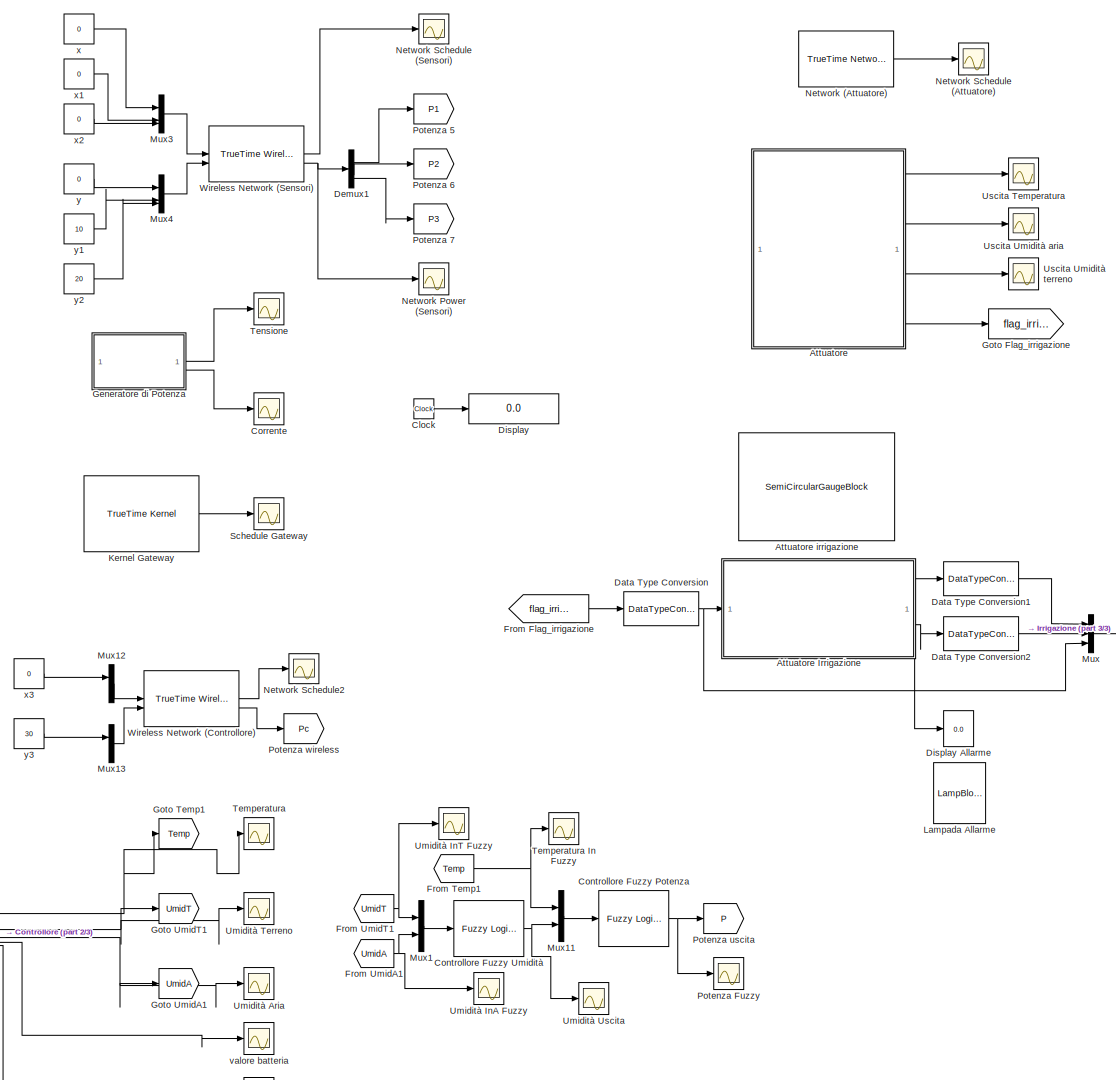
[diagram: root canvas - part 1/3, center side, full height]
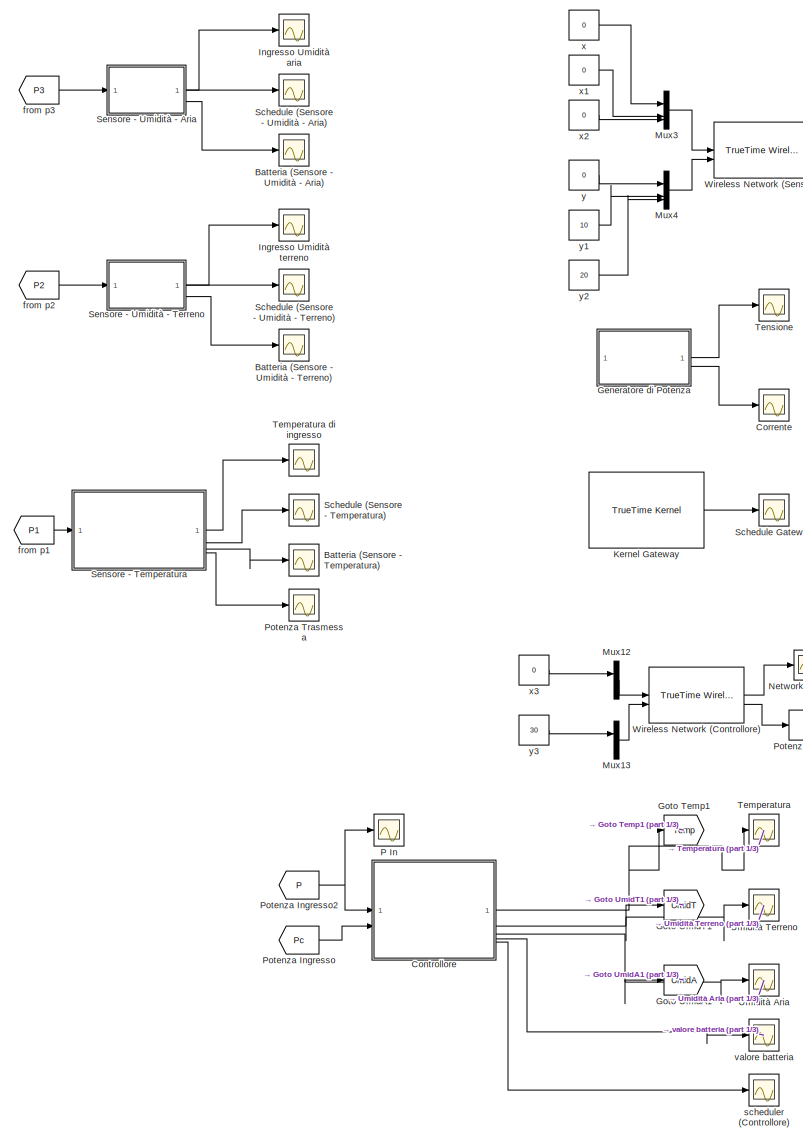
[diagram: root canvas - part 2/3, left side, full height]
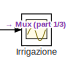
[diagram: root canvas - part 3/3, middle right region]
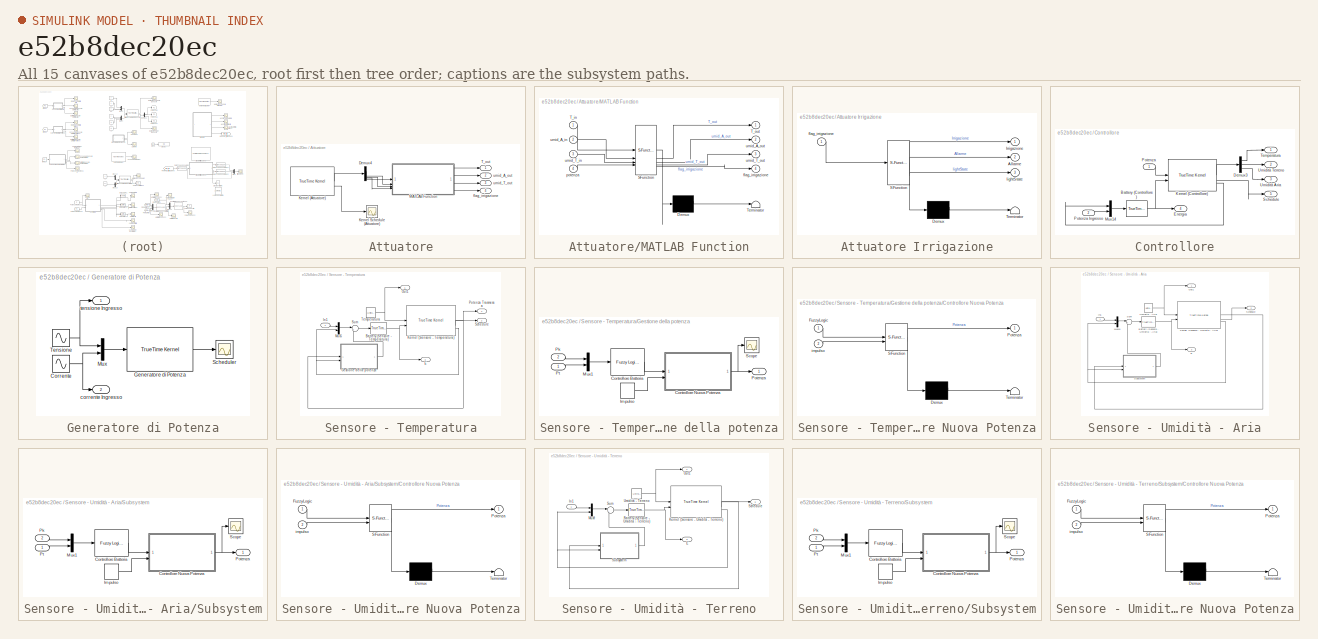
[diagram: thumbnail index - all 15 canvases of the model, root first then tree order]
MODEL slx_e52b8dec20ec
KIND model
CONFIG AbsTol = auto
CONFIG EnableMultiTasking = off
CONFIG FixedStep = auto
CONFIG MaxStep = auto
CONFIG MinStep = auto
CONFIG RelTol = 1e-3
CONFIG SampleTimeConstraint = Unconstrained
CONFIG SolverName = VariableStepAuto
CONFIG StartTime = 0.0
CONFIG StopTime = 600
BLOCK [SubSystem] Attuatore
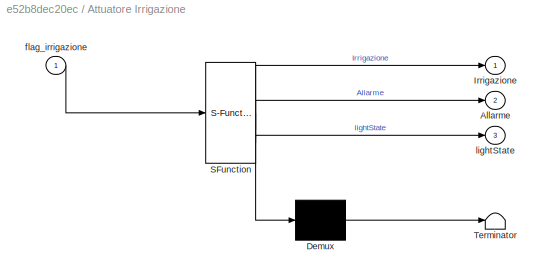
BLOCK [SubSystem] Attuatore Irrigazione
  ErrorFcn = Stateflow.Translate.translate
  PermitHierarchicalResolution = ExplicitOnly
  SFBlockType = Chart
  TreatAsAtomicUnit = on
BLOCK [Demux] Attuatore Irrigazione/ Demux 
  Outputs = 1
BLOCK [S-Function] Attuatore Irrigazione/ SFunction 
  EnableBusSupport = on
  FunctionName = sf_sfun
  PortCounts = [1 4]
  SFcnIsStateOwnerBlock = off
  SFunctionDeploymentMode = off
  Tag = Stateflow S-Function 3
BLOCK [Terminator] Attuatore Irrigazione/ Terminator 
BLOCK [Outport] Attuatore Irrigazione/Allarme
  Port = 2
BLOCK [Outport] Attuatore Irrigazione/Irrigazione
BLOCK [Inport] Attuatore Irrigazione/flag_irrigazione
BLOCK [Outport] Attuatore Irrigazione/lightState
  Port = 3
BLOCK [SemiCircularGaugeBlock] Attuatore irrigazione
  ScaleDirection = Counterclockwise
  ScaleMax = 10
BLOCK [Demux] Attuatore/Demux4
BLOCK [Reference] Attuatore/Kernel (Attuatore)  REF=truetime/TrueTime Kernel  (lib defined in slx_0362a698a4ec)
  SourceBlock = truetime/TrueTime Kernel
BLOCK [Scope] Attuatore/Kernel Schedule (Attuatore)
  Floating = off
  NumInputPorts = 1
  ScopeSpecificationString = Simulink.scopes.TimeScopeBlockCfg('CurrentConfiguration', extmgr.ConfigurationSet(extmgr.Configuration('Core','General UI',true),extmgr.Configuration('Core','Source UI',true),extmgr.Configuration('Sources','WiredSimulink',true,'DataLoggingVariableName','ScopeData1'),extmgr.Configuration('Visuals','Time Domain',true),extmgr.Configuration('Tools','Plot Navigation',true),extmgr.Configuration('Tools',...<+40ch>
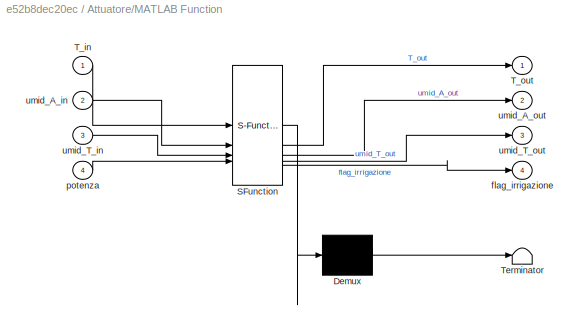
BLOCK [SubSystem] Attuatore/MATLAB Function
  ErrorFcn = Stateflow.Translate.translate
  PermitHierarchicalResolution = ExplicitOnly
  SFBlockType = MATLAB Function
  TreatAsAtomicUnit = on
BLOCK [Demux] Attuatore/MATLAB Function/ Demux 
  Outputs = 1
BLOCK [S-Function] Attuatore/MATLAB Function/ SFunction 
  EnableBusSupport = on
  FunctionName = sf_sfun
  PortCounts = [4 5]
  SFcnIsStateOwnerBlock = off
  SFunctionDeploymentMode = off
  Tag = Stateflow S-Function 1
BLOCK [Terminator] Attuatore/MATLAB Function/ Terminator 
BLOCK [Inport] Attuatore/MATLAB Function/T_in
BLOCK [Outport] Attuatore/MATLAB Function/T_out
BLOCK [Outport] Attuatore/MATLAB Function/flag_irrigazione
  Port = 4
BLOCK [Inport] Attuatore/MATLAB Function/potenza
  Port = 4
BLOCK [Inport] Attuatore/MATLAB Function/umid_A_in
  Port = 2
BLOCK [Outport] Attuatore/MATLAB Function/umid_A_out
  Port = 2
BLOCK [Inport] Attuatore/MATLAB Function/umid_T_in
  Port = 3
BLOCK [Outport] Attuatore/MATLAB Function/umid_T_out
  Port = 3
BLOCK [Outport] Attuatore/T_out
BLOCK [Outport] Attuatore/flag_irrigazione
  Port = 4
BLOCK [Outport] Attuatore/umid_A_out
  Port = 2
BLOCK [Outport] Attuatore/umid_T_out
  Port = 3
BLOCK [Scope] Batteria (Sensore - Temperatura)
  Floating = off
  NumInputPorts = 1
  ScopeSpecificationString = Simulink.scopes.TimeScopeBlockCfg('CurrentConfiguration', extmgr.ConfigurationSet(extmgr.Configuration('Core','General UI',true),extmgr.Configuration('Core','Source UI',true),extmgr.Configuration('Sources','WiredSimulink',true,'DataLoggingVariableName','ScopeData1'),extmgr.Configuration('Visuals','Time Domain',true,'SerializedDisplays',{struct('MinYLimReal','5.91377','MaxYLimReal','10.14938','YLab...<+1461ch>
BLOCK [Scope] Batteria (Sensore - Umidità - Aria)
  Floating = off
  NumInputPorts = 1
  ScopeSpecificationString = Simulink.scopes.TimeScopeBlockCfg('CurrentConfiguration', extmgr.ConfigurationSet(extmgr.Configuration('Core','General UI',true),extmgr.Configuration('Core','Source UI',true),extmgr.Configuration('Sources','WiredSimulink',true,'DataLoggingVariableName','ScopeData2'),extmgr.Configuration('Visuals','Time Domain',true,'SerializedDisplays',{struct('MinYLimReal','9.98931','MaxYLimReal','10.00119','YLab...<+1416ch>
BLOCK [Scope] Batteria (Sensore - Umidità - Terreno)
  Floating = off
  NumInputPorts = 1
  ScopeSpecificationString = Simulink.scopes.TimeScopeBlockCfg('CurrentConfiguration', extmgr.ConfigurationSet(extmgr.Configuration('Core','General UI',true),extmgr.Configuration('Core','Source UI',true),extmgr.Configuration('Sources','WiredSimulink',true,'DataLoggingVariableName','ScopeData3'),extmgr.Configuration('Visuals','Time Domain',true,'SerializedDisplays',{struct('MinYLimReal','9999.69694','MaxYLimReal','9999.92292',...<+1483ch>
BLOCK [Clock] Clock
  DisplayTime = on
BLOCK [SubSystem] Controllore
BLOCK [Reference] Controllore Fuzzy Potenza  REF=fuzblock/Fuzzy Logic   (lib defined in mdl_858b3b3e7478)
Controller
  SourceBlock = fuzblock/Fuzzy Logic \nController
  SourceType = Fuzzy Inference System
BLOCK [Reference] Controllore Fuzzy Umidità  REF=fuzblock/Fuzzy Logic   (lib defined in mdl_858b3b3e7478)
Controller
  SourceBlock = fuzblock/Fuzzy Logic \nController
  SourceType = Fuzzy Inference System
BLOCK [Reference] Controllore/Battery (Controllore)  REF=truetime/TrueTime Battery  (lib defined in slx_0362a698a4ec)
  SourceBlock = truetime/TrueTime Battery
BLOCK [Demux] Controllore/Demux3
  Outputs = 3
BLOCK [Outport] Controllore/Energia
  Port = 4
BLOCK [Reference] Controllore/Kernel (Controllore)  REF=truetime/TrueTime Kernel  (lib defined in slx_0362a698a4ec)
  SourceBlock = truetime/TrueTime Kernel
BLOCK [Mux] Controllore/Mux14
  DisplayOption = bar
  Inputs = 2
BLOCK [Inport] Controllore/Potenza
BLOCK [Inport] Controllore/Potenza Ingresso
  Port = 2
BLOCK [Outport] Controllore/Schedule
  Port = 5
BLOCK [Outport] Controllore/Temperatura
BLOCK [Outport] Controllore/Umidità Aria 
  Port = 3
BLOCK [Outport] Controllore/Umidità Terreno
  Port = 2
BLOCK [Scope] Corrente
  Floating = off
  NumInputPorts = 1
  ScopeSpecificationString = Simulink.scopes.TimeScopeBlockCfg('CurrentConfiguration', extmgr.ConfigurationSet(extmgr.Configuration('Core','General UI',true),extmgr.Configuration('Core','Source UI',true),extmgr.Configuration('Sources','WiredSimulink',true,'DataLoggingVariableName','ScopeData3'),extmgr.Configuration('Visuals','Time Domain',true,'SerializedDisplays',{struct('MinYLimReal','-0.0625','MaxYLimReal','0.0625','YLabel...<+1405ch>
BLOCK [DataTypeConversion] Data Type Conversion
  OutDataTypeStr = uint8
  RndMeth = Floor
  SaturateOnIntegerOverflow = off
BLOCK [DataTypeConversion] Data Type Conversion1
  OutDataTypeStr = uint8
  RndMeth = Floor
  SaturateOnIntegerOverflow = off
BLOCK [DataTypeConversion] Data Type Conversion2
  OutDataTypeStr = uint8
  RndMeth = Floor
  SaturateOnIntegerOverflow = off
BLOCK [Demux] Demux1
BLOCK [Display] Display
  Decimation = 1
BLOCK [Display] Display Allarme
  Decimation = 1
BLOCK [From] From Flag_irrigazione
  GotoTag = flag_irrigazione
BLOCK [From] From Temp1
  GotoTag = Temp
BLOCK [From] From UmidA1
  GotoTag = UmidA
BLOCK [From] From UmidT1
  GotoTag = UmidT
BLOCK [SubSystem] Generatore di Potenza
BLOCK [Sin] Generatore di Potenza/Corrente
  Amplitude = 0.05
  SampleTime = 0
BLOCK [Reference] Generatore di Potenza/Generatore di Potenza  REF=truetime/TrueTime Kernel  (lib defined in slx_0362a698a4ec)
  SourceBlock = truetime/TrueTime Kernel
BLOCK [Mux] Generatore di Potenza/Mux
  DisplayOption = bar
  Inputs = 2
BLOCK [Scope] Generatore di Potenza/Scheduler
  Floating = off
  NumInputPorts = 1
  ScopeSpecificationString = Simulink.scopes.TimeScopeBlockCfg('CurrentConfiguration', extmgr.ConfigurationSet(extmgr.Configuration('Core','General UI',true),extmgr.Configuration('Core','Source UI',true),extmgr.Configuration('Sources','WiredSimulink',true,'DataLoggingVariableName','ScopeData4'),extmgr.Configuration('Visuals','Time Domain',true),extmgr.Configuration('Tools','Plot Navigation',true),extmgr.Configuration('Tools',...<+40ch>
BLOCK [Sin] Generatore di Potenza/Tensione
  Amplitude = 18
  Phase = pi / 2
  SampleTime = 0
BLOCK [Outport] Generatore di Potenza/corrente Ingresso
  Port = 2
BLOCK [Outport] Generatore di Potenza/tensione Ingresso
  NameLocation = top
BLOCK [Goto] Goto Flag_irrigazione
  GotoTag = flag_irrigazione
BLOCK [Goto] Goto Temp1
  GotoTag = Temp
BLOCK [Goto] Goto UmidA1
  GotoTag = UmidA
BLOCK [Goto] Goto UmidT1
  GotoTag = UmidT
BLOCK [Scope] Ingresso Umidità aria
  Floating = off
  NumInputPorts = 1
  ScopeSpecificationString = Simulink.scopes.TimeScopeBlockCfg('CurrentConfiguration', extmgr.ConfigurationSet(extmgr.Configuration('Core','General UI',true),extmgr.Configuration('Core','Source UI',true),extmgr.Configuration('Sources','WiredSimulink',true,'DataLoggingVariableName','ScopeData16'),extmgr.Configuration('Visuals','Time Domain',true,'SerializedDisplays',{struct('MinYLimReal','23.08685','MaxYLimReal','96.83729','YL...<+1392ch>
BLOCK [Scope] Ingresso Umidità terreno
  Floating = off
  NumInputPorts = 1
  ScopeSpecificationString = Simulink.scopes.TimeScopeBlockCfg('CurrentConfiguration', extmgr.ConfigurationSet(extmgr.Configuration('Core','General UI',true),extmgr.Configuration('Core','Source UI',true),extmgr.Configuration('Sources','WiredSimulink',true,'DataLoggingVariableName','ScopeData17'),extmgr.Configuration('Visuals','Time Domain',true,'SerializedDisplays',{struct('MinYLimReal','23.08685','MaxYLimReal','96.83729','YL...<+1424ch>
BLOCK [Scope] Irrigazione
  Floating = off
  NumInputPorts = 1
  ScopeSpecificationString = Simulink.scopes.TimeScopeBlockCfg('CurrentConfiguration', extmgr.ConfigurationSet(extmgr.Configuration('Core','General UI',true),extmgr.Configuration('Core','Source UI',true),extmgr.Configuration('Sources','WiredSimulink',true,'DataLoggingVariableName','ScopeData1'),extmgr.Configuration('Visuals','Time Domain',true,'SerializedDisplays',{struct('MinYLimReal','-0.625','MaxYLimReal','5.625','YLabelRe...<+1444ch>
BLOCK [Reference] Kernel Gateway  REF=truetime/TrueTime Kernel  (lib defined in slx_0362a698a4ec)
  SourceBlock = truetime/TrueTime Kernel
BLOCK [LampBlock] Lampada Allarme
BLOCK [Mux] Mux
  DisplayOption = bar
  Inputs = 3
BLOCK [Mux] Mux1
  DisplayOption = bar
  Inputs = 2
BLOCK [Mux] Mux11
  DisplayOption = bar
  Inputs = 2
BLOCK [Mux] Mux12
  DisplayOption = bar
  Inputs = 2
BLOCK [Mux] Mux13
  DisplayOption = bar
  Inputs = 2
BLOCK [Mux] Mux3
  DisplayOption = bar
BLOCK [Mux] Mux4
  DisplayOption = bar
BLOCK [Reference] Network (Attuatore)  REF=truetime/TrueTime Network  (lib defined in slx_0362a698a4ec)
  SourceBlock = truetime/TrueTime Network
  SourceType = Real-Time Network
BLOCK [Scope] Network Power (Sensori)
  Floating = off
  NumInputPorts = 1
  ScopeSpecificationString = Simulink.scopes.TimeScopeBlockCfg('CurrentConfiguration', extmgr.ConfigurationSet(extmgr.Configuration('Core','General UI',true,'FigureColor',[0.156862745098039 0.156862745098039 0.156862745098039]),extmgr.Configuration('Core','Source UI',true),extmgr.Configuration('Sources','WiredSimulink',true,'DataLoggingVariableName','ScopeData8','DataLoggingSaveFormat','StructureWithTime','DataLoggingDecimati...<+2903ch>
BLOCK [Scope] Network Schedule (Attuatore)
  Floating = off
  NumInputPorts = 1
  ScopeSpecificationString = Simulink.scopes.TimeScopeBlockCfg('CurrentConfiguration', extmgr.ConfigurationSet(extmgr.Configuration('Core','General UI',true),extmgr.Configuration('Core','Source UI',true),extmgr.Configuration('Sources','WiredSimulink',true,'DataLoggingVariableName','ScopeData25'),extmgr.Configuration('Visuals','Time Domain',true,'SerializedDisplays',{struct('MinYLimReal','0.5625','MaxYLimReal','4.9375','YLabel...<+1443ch>
BLOCK [Scope] Network Schedule (Sensori)
  Floating = off
  NumInputPorts = 1
  ScopeSpecificationString = Simulink.scopes.TimeScopeBlockCfg('CurrentConfiguration', extmgr.ConfigurationSet(extmgr.Configuration('Core','General UI',true,'FigureColor',[0.156862745098039 0.156862745098039 0.156862745098039]),extmgr.Configuration('Core','Source UI',true),extmgr.Configuration('Sources','WiredSimulink',true,'DataLogging',true,'DataLoggingVariableName','ScopeData5','DataLoggingSaveFormat','StructureWithTime','...<+2773ch>
BLOCK [Scope] Network Schedule2
  Floating = off
  NumInputPorts = 1
  ScopeSpecificationString = Simulink.scopes.TimeScopeBlockCfg('CurrentConfiguration', extmgr.ConfigurationSet(extmgr.Configuration('Core','General UI',true,'FigureColor',[0.156862745098039 0.156862745098039 0.156862745098039]),extmgr.Configuration('Core','Source UI',true),extmgr.Configuration('Sources','WiredSimulink',true,'DataLogging',true,'DataLoggingVariableName','ScopeData4','DataLoggingSaveFormat','StructureWithTime','...<+2773ch>
BLOCK [Scope] P In
  Floating = off
  NumInputPorts = 1
  ScopeSpecificationString = Simulink.scopes.TimeScopeBlockCfg('CurrentConfiguration', extmgr.ConfigurationSet(extmgr.Configuration('Core','General UI',true),extmgr.Configuration('Core','Source UI',true),extmgr.Configuration('Sources','WiredSimulink',true,'DataLoggingVariableName','ScopeData6'),extmgr.Configuration('Visuals','Time Domain',true,'SerializedDisplays',{struct('MinYLimReal','1.40743','MaxYLimReal','9.5363','YLabel...<+1402ch>
BLOCK [Goto] Potenza 5
  GotoTag = P1
BLOCK [Goto] Potenza 6
  GotoTag = P2
BLOCK [Goto] Potenza 7
  GotoTag = P3
BLOCK [Scope] Potenza Fuzzy
  Floating = off
  NumInputPorts = 1
  ScopeSpecificationString = Simulink.scopes.TimeScopeBlockCfg('CurrentConfiguration', extmgr.ConfigurationSet(extmgr.Configuration('Core','General UI',true),extmgr.Configuration('Core','Source UI',true),extmgr.Configuration('Sources','WiredSimulink',true,'DataLoggingVariableName','ScopeData7'),extmgr.Configuration('Visuals','Time Domain',true,'SerializedDisplays',{struct('MinYLimReal','1.53238','MaxYLimReal','9.46543','YLabe...<+1410ch>
BLOCK [From] Potenza Ingresso
  GotoTag = Pc
BLOCK [From] Potenza Ingresso2
  GotoTag = P
BLOCK [Scope] Potenza Trasmessa
  Floating = off
  NumInputPorts = 1
  ScopeSpecificationString = Simulink.scopes.TimeScopeBlockCfg('CurrentConfiguration', extmgr.ConfigurationSet(extmgr.Configuration('Core','General UI',true),extmgr.Configuration('Core','Source UI',true),extmgr.Configuration('Sources','WiredSimulink',true,'DataLoggingVariableName','ScopeData5'),extmgr.Configuration('Visuals','Time Domain',true,'SerializedDisplays',{struct('MinYLimReal','-0.43885','MaxYLimReal','0.54407','YLab...<+1411ch>
BLOCK [Goto] Potenza uscita
  GotoTag = P
BLOCK [Goto] Potenza wireless
  GotoTag = Pc
BLOCK [Scope] Schedule (Sensore - Temperatura)
  Floating = off
  NumInputPorts = 1
  ScopeSpecificationString = Simulink.scopes.TimeScopeBlockCfg('CurrentConfiguration', extmgr.ConfigurationSet(extmgr.Configuration('Core','General UI',true),extmgr.Configuration('Core','Source UI',true),extmgr.Configuration('Sources','WiredSimulink',true,'DataLoggingVariableName','ScopeData9'),extmgr.Configuration('Visuals','Time Domain',true,'SerializedDisplays',{struct('MinYLimReal','0.75','MaxYLimReal','3.25','YLabelReal'...<+1414ch>
BLOCK [Scope] Schedule (Sensore - Umidità -  Aria)
  Floating = off
  NumInputPorts = 1
  ScopeSpecificationString = Simulink.scopes.TimeScopeBlockCfg('CurrentConfiguration', extmgr.ConfigurationSet(extmgr.Configuration('Core','General UI',true),extmgr.Configuration('Core','Source UI',true),extmgr.Configuration('Sources','WiredSimulink',true,'DataLoggingVariableName','ScopeData10'),extmgr.Configuration('Visuals','Time Domain',true),extmgr.Configuration('Tools','Plot Navigation',true),extmgr.Configuration('Tools'...<+41ch>
BLOCK [Scope] Schedule (Sensore - Umidità - Terreno)
  Floating = off
  NumInputPorts = 1
  ScopeSpecificationString = Simulink.scopes.TimeScopeBlockCfg('CurrentConfiguration', extmgr.ConfigurationSet(extmgr.Configuration('Core','General UI',true),extmgr.Configuration('Core','Source UI',true),extmgr.Configuration('Sources','WiredSimulink',true,'DataLoggingVariableName','ScopeData11'),extmgr.Configuration('Visuals','Time Domain',true),extmgr.Configuration('Tools','Plot Navigation',true),extmgr.Configuration('Tools'...<+41ch>
BLOCK [Scope] Schedule Gateway
  Floating = off
  NumInputPorts = 1
  ScopeSpecificationString = Simulink.scopes.TimeScopeBlockCfg('CurrentConfiguration', extmgr.ConfigurationSet(extmgr.Configuration('Core','General UI',true),extmgr.Configuration('Core','Source UI',true),extmgr.Configuration('Sources','WiredSimulink',true,'DataLoggingVariableName','ScopeData12'),extmgr.Configuration('Visuals','Time Domain',true),extmgr.Configuration('Tools','Plot Navigation',true),extmgr.Configuration('Tools'...<+41ch>
BLOCK [SubSystem] Sensore - Temperatura
BLOCK [Reference] Sensore - Temperatura/Battery (Sensore - Temperatura)   REF=truetime/TrueTime Battery  (lib defined in slx_0362a698a4ec)
  SourceBlock = truetime/TrueTime Battery
BLOCK [Outport] Sensore - Temperatura/E
  Port = 3
BLOCK [SubSystem] Sensore - Temperatura/Gestione della potenza
BLOCK [Reference] Sensore - Temperatura/Gestione della potenza/Controllore Batteria  REF=fuzblock/Fuzzy Logic   (lib defined in mdl_858b3b3e7478)
Controller
  SourceBlock = fuzblock/Fuzzy Logic \nController
  SourceType = Fuzzy Inference System
BLOCK [SubSystem] Sensore - Temperatura/Gestione della potenza/Controllore Nuova Potenza
  ErrorFcn = Stateflow.Translate.translate
  PermitHierarchicalResolution = ExplicitOnly
  SFBlockType = MATLAB Function
  TreatAsAtomicUnit = on
BLOCK [Demux] Sensore - Temperatura/Gestione della potenza/Controllore Nuova Potenza/ Demux 
  Outputs = 1
BLOCK [S-Function] Sensore - Temperatura/Gestione della potenza/Controllore Nuova Potenza/ SFunction 
  EnableBusSupport = on
  FunctionName = sf_sfun
  PortCounts = [2 2]
  SFcnIsStateOwnerBlock = off
  SFunctionDeploymentMode = off
  Tag = Stateflow S-Function 4
BLOCK [Terminator] Sensore - Temperatura/Gestione della potenza/Controllore Nuova Potenza/ Terminator 
BLOCK [Inport] Sensore - Temperatura/Gestione della potenza/Controllore Nuova Potenza/FuzzyLogic
BLOCK [Outport] Sensore - Temperatura/Gestione della potenza/Controllore Nuova Potenza/Potenza
BLOCK [Inport] Sensore - Temperatura/Gestione della potenza/Controllore Nuova Potenza/impulso
  Port = 2
BLOCK [DiscretePulseGenerator] Sensore - Temperatura/Gestione della potenza/Impulso
  Amplitude = 0.1
  Period = 1
  PulseType = Time based
  PulseWidth = 5
BLOCK [Mux] Sensore - Temperatura/Gestione della potenza/Mux1
  DisplayOption = bar
  Inputs = 2
BLOCK [Inport] Sensore - Temperatura/Gestione della potenza/Pk
  Port = 2
BLOCK [Outport] Sensore - Temperatura/Gestione della potenza/Potenza
BLOCK [Inport] Sensore - Temperatura/Gestione della potenza/Pt
BLOCK [Scope] Sensore - Temperatura/Gestione della potenza/Scope
  Floating = off
  NumInputPorts = 1
  ScopeSpecificationString = Simulink.scopes.TimeScopeBlockCfg('CurrentConfiguration', extmgr.ConfigurationSet(extmgr.Configuration('Core','General UI',true),extmgr.Configuration('Core','Source UI',true),extmgr.Configuration('Sources','WiredSimulink',true,'DataLoggingVariableName','ScopeData1'),extmgr.Configuration('Visuals','Time Domain',true,'SerializedDisplays',{struct('MinYLimReal','-0.00557','MaxYLimReal','0.05017','YLab...<+1413ch>  <repeated x3 — deduplicated; at blocks: Scope>
BLOCK [Inport] Sensore - Temperatura/In1
BLOCK [Reference] Sensore - Temperatura/Kernel (Sensore - Temperatura)  REF=truetime/TrueTime Kernel  (lib defined in slx_0362a698a4ec)
  SourceBlock = truetime/TrueTime Kernel
BLOCK [Mux] Sensore - Temperatura/Mux5
  DisplayOption = bar
  Inputs = 2
BLOCK [Outport] Sensore - Temperatura/Out1
BLOCK [Outport] Sensore - Temperatura/Potenza Trasmessa
  Port = 4
BLOCK [Outport] Sensore - Temperatura/Schedule
  Port = 2
BLOCK [Sum] Sensore - Temperatura/Sum
  Inputs = |+-
BLOCK [UniformRandomNumber] Sensore - Temperatura/Temperatura
  Maximum = 40
  Minimum = 10
  SampleTime = 1
  Seed = 5
BLOCK [SubSystem] Sensore - Umidità - Aria
BLOCK [Reference] Sensore - Umidità - Aria/Battery (Sensore - Umidità - Aria)  REF=truetime/TrueTime Battery  (lib defined in slx_0362a698a4ec)
  SourceBlock = truetime/TrueTime Battery
BLOCK [Outport] Sensore - Umidità - Aria/E
  Port = 3
BLOCK [Inport] Sensore - Umidità - Aria/In1
BLOCK [Reference] Sensore - Umidità - Aria/Kernel (Sensore - Umidità - Aria)  REF=truetime/TrueTime Kernel  (lib defined in slx_0362a698a4ec)
  SourceBlock = truetime/TrueTime Kernel
BLOCK [Mux] Sensore - Umidità - Aria/Mux10
  DisplayOption = bar
  Inputs = 2
BLOCK [Outport] Sensore - Umidità - Aria/Out1
BLOCK [Outport] Sensore - Umidità - Aria/Schedule
  Port = 2
BLOCK [SubSystem] Sensore - Umidità - Aria/Subsystem
BLOCK [Reference] Sensore - Umidità - Aria/Subsystem/Controllore Batteria  REF=fuzblock/Fuzzy Logic   (lib defined in mdl_858b3b3e7478)
Controller
  SourceBlock = fuzblock/Fuzzy Logic \nController
  SourceType = Fuzzy Inference System
BLOCK [SubSystem] Sensore - Umidità - Aria/Subsystem/Controllore Nuova Potenza
  ErrorFcn = Stateflow.Translate.translate
  PermitHierarchicalResolution = ExplicitOnly
  SFBlockType = MATLAB Function
  TreatAsAtomicUnit = on
BLOCK [Demux] Sensore - Umidità - Aria/Subsystem/Controllore Nuova Potenza/ Demux 
  Outputs = 1
BLOCK [S-Function] Sensore - Umidità - Aria/Subsystem/Controllore Nuova Potenza/ SFunction 
  EnableBusSupport = on
  FunctionName = sf_sfun
  PortCounts = [2 2]
  SFcnIsStateOwnerBlock = off
  SFunctionDeploymentMode = off
  Tag = Stateflow S-Function 5
BLOCK [Terminator] Sensore - Umidità - Aria/Subsystem/Controllore Nuova Potenza/ Terminator 
BLOCK [Inport] Sensore - Umidità - Aria/Subsystem/Controllore Nuova Potenza/FuzzyLogic
BLOCK [Outport] Sensore - Umidità - Aria/Subsystem/Controllore Nuova Potenza/Potenza
BLOCK [Inport] Sensore - Umidità - Aria/Subsystem/Controllore Nuova Potenza/impulso
  Port = 2
BLOCK [DiscretePulseGenerator] Sensore - Umidità - Aria/Subsystem/Impulso
  Amplitude = 0.1
  Period = 1
  PulseType = Time based
  PulseWidth = 5
BLOCK [Mux] Sensore - Umidità - Aria/Subsystem/Mux1
  DisplayOption = bar
  Inputs = 2
BLOCK [Inport] Sensore - Umidità - Aria/Subsystem/Pk
  Port = 2
BLOCK [Outport] Sensore - Umidità - Aria/Subsystem/Potenza
BLOCK [Inport] Sensore - Umidità - Aria/Subsystem/Pt
BLOCK [Scope] Sensore - Umidità - Aria/Subsystem/Scope
  Floating = off
  NumInputPorts = 1
BLOCK [Sum] Sensore - Umidità - Aria/Sum
  Inputs = |+-
BLOCK [UniformRandomNumber] Sensore - Umidità - Aria/Umidità - Aria
  Maximum = 90
  Minimum = 30
  SampleTime = 1
  Seed = 5
BLOCK [SubSystem] Sensore - Umidità - Terreno
BLOCK [Reference] Sensore - Umidità - Terreno/Battery (Sensore - Umidità - Terreno)   REF=truetime/TrueTime Battery  (lib defined in slx_0362a698a4ec)
  SourceBlock = truetime/TrueTime Battery
BLOCK [Outport] Sensore - Umidità - Terreno/E
  Port = 3
BLOCK [Inport] Sensore - Umidità - Terreno/In1
BLOCK [Reference] Sensore - Umidità - Terreno/Kernel (Sensore - Umidità - Terreno)  REF=truetime/TrueTime Kernel  (lib defined in slx_0362a698a4ec)
  SourceBlock = truetime/TrueTime Kernel
BLOCK [Mux] Sensore - Umidità - Terreno/Mux9
  DisplayOption = bar
  Inputs = 2
BLOCK [Outport] Sensore - Umidità - Terreno/Out1
BLOCK [Outport] Sensore - Umidità - Terreno/Schedule
  Port = 2
BLOCK [SubSystem] Sensore - Umidità - Terreno/Subsystem
BLOCK [Reference] Sensore - Umidità - Terreno/Subsystem/Controllore Batteria  REF=fuzblock/Fuzzy Logic   (lib defined in mdl_858b3b3e7478)
Controller
  SourceBlock = fuzblock/Fuzzy Logic \nController
  SourceType = Fuzzy Inference System
BLOCK [SubSystem] Sensore - Umidità - Terreno/Subsystem/Controllore Nuova Potenza
  ErrorFcn = Stateflow.Translate.translate
  PermitHierarchicalResolution = ExplicitOnly
  SFBlockType = MATLAB Function
  TreatAsAtomicUnit = on
BLOCK [Demux] Sensore - Umidità - Terreno/Subsystem/Controllore Nuova Potenza/ Demux 
  Outputs = 1
BLOCK [S-Function] Sensore - Umidità - Terreno/Subsystem/Controllore Nuova Potenza/ SFunction 
  EnableBusSupport = on
  FunctionName = sf_sfun
  PortCounts = [2 2]
  SFcnIsStateOwnerBlock = off
  SFunctionDeploymentMode = off
  Tag = Stateflow S-Function 2
BLOCK [Terminator] Sensore - Umidità - Terreno/Subsystem/Controllore Nuova Potenza/ Terminator 
BLOCK [Inport] Sensore - Umidità - Terreno/Subsystem/Controllore Nuova Potenza/FuzzyLogic
BLOCK [Outport] Sensore - Umidità - Terreno/Subsystem/Controllore Nuova Potenza/Potenza
BLOCK [Inport] Sensore - Umidità - Terreno/Subsystem/Controllore Nuova Potenza/impulso
  Port = 2
BLOCK [DiscretePulseGenerator] Sensore - Umidità - Terreno/Subsystem/Impulso
  Amplitude = 0.1
  Period = 1
  PulseType = Time based
  PulseWidth = 5
BLOCK [Mux] Sensore - Umidità - Terreno/Subsystem/Mux1
  DisplayOption = bar
  Inputs = 2
BLOCK [Inport] Sensore - Umidità - Terreno/Subsystem/Pk
  Port = 2
BLOCK [Outport] Sensore - Umidità - Terreno/Subsystem/Potenza
BLOCK [Inport] Sensore - Umidità - Terreno/Subsystem/Pt
BLOCK [Scope] Sensore - Umidità - Terreno/Subsystem/Scope
  Floating = off
  NumInputPorts = 1
BLOCK [Sum] Sensore - Umidità - Terreno/Sum
  Inputs = |+-
BLOCK [UniformRandomNumber] Sensore - Umidità - Terreno/Umidità - Terreno
  Maximum = 90
  Minimum = 30
  SampleTime = 1
  Seed = 5
BLOCK [Scope] Temperatura 
  Floating = off
  NumInputPorts = 1
  ScopeSpecificationString = Simulink.scopes.TimeScopeBlockCfg('CurrentConfiguration', extmgr.ConfigurationSet(extmgr.Configuration('Core','General UI',true),extmgr.Configuration('Core','Source UI',true),extmgr.Configuration('Sources','WiredSimulink',true,'DataLoggingVariableName','ScopeData13'),extmgr.Configuration('Visuals','Time Domain',true,'SerializedDisplays',{struct('MinYLimReal','-4.96639','MaxYLimReal','44.69751','YL...<+1406ch>
BLOCK [Scope] Temperatura In Fuzzy
  Floating = off
  NumInputPorts = 1
  ScopeSpecificationString = Simulink.scopes.TimeScopeBlockCfg('CurrentConfiguration', extmgr.ConfigurationSet(extmgr.Configuration('Core','General UI',true),extmgr.Configuration('Core','Source UI',true),extmgr.Configuration('Sources','WiredSimulink',true,'DataLoggingVariableName','ScopeData14'),extmgr.Configuration('Visuals','Time Domain',true,'SerializedDisplays',{struct('MinYLimReal','-4.7551','MaxYLimReal','42.79589','YLa...<+1403ch>
BLOCK [Scope] Temperatura di ingresso
  Floating = off
  NumInputPorts = 1
  ScopeSpecificationString = Simulink.scopes.TimeScopeBlockCfg('CurrentConfiguration', extmgr.ConfigurationSet(extmgr.Configuration('Core','General UI',true),extmgr.Configuration('Core','Source UI',true),extmgr.Configuration('Sources','WiredSimulink',true,'DataLoggingVariableName','ScopeData15'),extmgr.Configuration('Visuals','Time Domain',true,'SerializedDisplays',{struct('MinYLimReal','6.56878','MaxYLimReal','26.56878','YLa...<+1385ch>
BLOCK [Scope] Tensione
  Floating = off
  NumInputPorts = 1
  ScopeSpecificationString = Simulink.scopes.TimeScopeBlockCfg('CurrentConfiguration', extmgr.ConfigurationSet(extmgr.Configuration('Core','General UI',true),extmgr.Configuration('Core','Source UI',true),extmgr.Configuration('Sources','WiredSimulink',true,'DataLoggingVariableName','ScopeData2'),extmgr.Configuration('Visuals','Time Domain',true,'SerializedDisplays',{struct('MinYLimReal','-22.49998','MaxYLimReal','22.5','YLabel...<+1400ch>
BLOCK [Scope] Umidità Aria
  Floating = off
  NumInputPorts = 1
  ScopeSpecificationString = Simulink.scopes.TimeScopeBlockCfg('CurrentConfiguration', extmgr.ConfigurationSet(extmgr.Configuration('Core','General UI',true),extmgr.Configuration('Core','Source UI',true),extmgr.Configuration('Sources','WiredSimulink',true,'DataLoggingVariableName','ScopeData18'),extmgr.Configuration('Visuals','Time Domain',true,'SerializedDisplays',{struct('MinYLimReal','-10.7602','MaxYLimReal','96.84177','YL...<+1371ch>
BLOCK [Scope] Umidità InA Fuzzy
  Floating = off
  NumInputPorts = 1
  ScopeSpecificationString = Simulink.scopes.TimeScopeBlockCfg('CurrentConfiguration', extmgr.ConfigurationSet(extmgr.Configuration('Core','General UI',true),extmgr.Configuration('Core','Source UI',true),extmgr.Configuration('Sources','WiredSimulink',true,'DataLoggingVariableName','ScopeData19'),extmgr.Configuration('Visuals','Time Domain',true,'SerializedDisplays',{struct('MinYLimReal','-10.7602','MaxYLimReal','96.84177','YL...<+1406ch>
BLOCK [Scope] Umidità InT Fuzzy
  Floating = off
  NumInputPorts = 1
  ScopeSpecificationString = Simulink.scopes.TimeScopeBlockCfg('CurrentConfiguration', extmgr.ConfigurationSet(extmgr.Configuration('Core','General UI',true),extmgr.Configuration('Core','Source UI',true),extmgr.Configuration('Sources','WiredSimulink',true,'DataLoggingVariableName','ScopeData20'),extmgr.Configuration('Visuals','Time Domain',true,'SerializedDisplays',{struct('MinYLimReal','-10.7602','MaxYLimReal','96.84177','YL...<+1377ch>
BLOCK [Scope] Umidità Terreno
  Floating = off
  NumInputPorts = 1
  ScopeSpecificationString = Simulink.scopes.TimeScopeBlockCfg('CurrentConfiguration', extmgr.ConfigurationSet(extmgr.Configuration('Core','General UI',true),extmgr.Configuration('Core','Source UI',true),extmgr.Configuration('Sources','WiredSimulink',true,'DataLoggingVariableName','ScopeData21'),extmgr.Configuration('Visuals','Time Domain',true,'SerializedDisplays',{struct('MinYLimReal','-11.18278','MaxYLimReal','100.64502','...<+1383ch>
BLOCK [Scope] Umidità Uscita
  Floating = off
  NumInputPorts = 1
  ScopeSpecificationString = Simulink.scopes.TimeScopeBlockCfg('CurrentConfiguration', extmgr.ConfigurationSet(extmgr.Configuration('Core','General UI',true),extmgr.Configuration('Core','Source UI',true),extmgr.Configuration('Sources','WiredSimulink',true,'DataLoggingVariableName','ScopeData1'),extmgr.Configuration('Visuals','Time Domain',true,'SerializedDisplays',{struct('MinYLimReal','32.68178','MaxYLimReal','87.21834','YLa...<+1419ch>
BLOCK [Scope] Uscita Temperatura
  Floating = off
  NumInputPorts = 1
  ScopeSpecificationString = Simulink.scopes.TimeScopeBlockCfg('CurrentConfiguration', extmgr.ConfigurationSet(extmgr.Configuration('Core','General UI',true),extmgr.Configuration('Core','Source UI',true),extmgr.Configuration('Sources','WiredSimulink',true,'DataLoggingVariableName','ScopeData26'),extmgr.Configuration('Visuals','Time Domain',true,'SerializedDisplays',{struct('MinYLimReal','-2.81557','MaxYLimReal','25.34015','YL...<+1408ch>
BLOCK [Scope] Uscita Umidità aria
  Floating = off
  NumInputPorts = 1
  ScopeSpecificationString = Simulink.scopes.TimeScopeBlockCfg('CurrentConfiguration', extmgr.ConfigurationSet(extmgr.Configuration('Core','General UI',true),extmgr.Configuration('Core','Source UI',true),extmgr.Configuration('Sources','WiredSimulink',true,'DataLoggingVariableName','ScopeData27'),extmgr.Configuration('Visuals','Time Domain',true,'SerializedDisplays',{struct('MinYLimReal','-8.1861','MaxYLimReal','73.67492','YLa...<+1411ch>
BLOCK [Scope] Uscita Umidità terreno
  Floating = off
  NumInputPorts = 1
  ScopeSpecificationString = Simulink.scopes.TimeScopeBlockCfg('CurrentConfiguration', extmgr.ConfigurationSet(extmgr.Configuration('Core','General UI',true),extmgr.Configuration('Core','Source UI',true),extmgr.Configuration('Sources','WiredSimulink',true,'DataLoggingVariableName','ScopeData28'),extmgr.Configuration('Visuals','Time Domain',true,'SerializedDisplays',{struct('MinYLimReal','-10.7602','MaxYLimReal','96.84177','YL...<+1413ch>
BLOCK [Reference] Wireless Network (Controllore)  REF=truetime/TrueTime Wireless   (lib defined in slx_0362a698a4ec)
Network
  SourceBlock = truetime/TrueTime Wireless \nNetwork
  SourceType = Wireless Network
BLOCK [Reference] Wireless Network (Sensori)  REF=truetime/TrueTime Wireless   (lib defined in slx_0362a698a4ec)
Network
  SourceBlock = truetime/TrueTime Wireless \nNetwork
  SourceType = Wireless Network
BLOCK [From] from p1
  GotoTag = P1
BLOCK [From] from p2
  GotoTag = P2
BLOCK [From] from p3
  GotoTag = P3
BLOCK [Scope] scheduler (Controllore)
  Floating = off
  NumInputPorts = 1
  ScopeSpecificationString = Simulink.scopes.TimeScopeBlockCfg('CurrentConfiguration', extmgr.ConfigurationSet(extmgr.Configuration('Core','General UI',true),extmgr.Configuration('Core','Source UI',true),extmgr.Configuration('Sources','WiredSimulink',true,'DataLoggingVariableName','ScopeData24'),extmgr.Configuration('Visuals','Time Domain',true),extmgr.Configuration('Tools','Plot Navigation',true),extmgr.Configuration('Tools'...<+41ch>
BLOCK [Scope] valore batteria
  Floating = off
  NumInputPorts = 1
  ScopeSpecificationString = Simulink.scopes.TimeScopeBlockCfg('CurrentConfiguration', extmgr.ConfigurationSet(extmgr.Configuration('Core','General UI',true),extmgr.Configuration('Core','Source UI',true),extmgr.Configuration('Sources','WiredSimulink',true,'DataLoggingVariableName','ScopeData29'),extmgr.Configuration('Visuals','Time Domain',true,'SerializedDisplays',{struct('MinYLimReal','49.95185','MaxYLimReal','50.00535','YL...<+1408ch>
BLOCK [Constant] x
  Value = 0
BLOCK [Constant] x1
  Value = 0
BLOCK [Constant] x2
  Value = 0
BLOCK [Constant] x3
  Value = 0
BLOCK [Constant] y
  Value = 0
BLOCK [Constant] y1
  Value = 10
BLOCK [Constant] y2
  Value = 20
BLOCK [Constant] y3
  Value = 30
LINE Attuatore Irrigazione:1 -> Data Type Conversion1:1
LINE Attuatore Irrigazione:2 -> Data Type Conversion2:1
LINE Attuatore Irrigazione:3 -> Display Allarme:1
LINE Attuatore/Demux4:1 -> Attuatore/MATLAB Function:1
LINE Attuatore/Demux4:2 -> Attuatore/MATLAB Function:2
LINE Attuatore/Demux4:3 -> Attuatore/MATLAB Function:3
LINE Attuatore/Demux4:4 -> Attuatore/MATLAB Function:4
LINE Attuatore/Kernel (Attuatore):1 -> Attuatore/Demux4:1
LINE Attuatore/Kernel (Attuatore):2 -> Attuatore/Kernel Schedule (Attuatore):1
LINE Attuatore/MATLAB Function:1 -> Attuatore/T_out:1
LINE Attuatore/MATLAB Function:2 -> Attuatore/umid_A_out:1
LINE Attuatore/MATLAB Function:3 -> Attuatore/umid_T_out:1
LINE Attuatore/MATLAB Function:4 -> Attuatore/flag_irrigazione:1
LINE Attuatore:1 -> Uscita Temperatura:1
LINE Attuatore:2 -> Uscita Umidità aria:1
LINE Attuatore:3 -> Uscita Umidità terreno:1
LINE Attuatore:4 -> Goto Flag_irrigazione:1
LINE Clock:1 -> Display:1
NET Controllore Fuzzy Potenza:1 -> Potenza Fuzzy:1, Potenza uscita:1
NET Controllore Fuzzy Umidità:1 -> Mux11:2, Umidità Uscita:1
NET Controllore/Battery (Controllore):1 -> Controllore/Energia:1, Controllore/Kernel (Controllore):2
LINE Controllore/Demux3:1 -> Controllore/Temperatura:1
LINE Controllore/Demux3:2 -> Controllore/Umidità Terreno:1
LINE Controllore/Demux3:3 -> Controllore/Umidità Aria :1
LINE Controllore/Kernel (Controllore):1 -> Controllore/Demux3:1
LINE Controllore/Kernel (Controllore):2 -> Controllore/Schedule:1
LINE Controllore/Kernel (Controllore):3 -> Controllore/Mux14:1
LINE Controllore/Mux14:1 -> Controllore/Battery (Controllore):1
LINE Controllore/Potenza Ingresso:1 -> Controllore/Mux14:2
LINE Controllore/Potenza:1 -> Controllore/Kernel (Controllore):1
NET Controllore:1 -> Goto Temp1:1, Temperatura :1
NET Controllore:2 -> Goto UmidT1:1, Umidità Terreno:1
NET Controllore:3 -> Goto UmidA1:1, Umidità Aria:1
LINE Controllore:4 -> valore batteria:1
LINE Controllore:5 -> scheduler (Controllore):1
LINE Data Type Conversion1:1 -> Mux:1
LINE Data Type Conversion2:1 -> Mux:2
NET Data Type Conversion:1 -> Attuatore Irrigazione:1, Mux:3
LINE Demux1:1 -> Potenza 5:1
LINE Demux1:2 -> Potenza 6:1
LINE Demux1:3 -> Potenza 7:1
LINE From Flag_irrigazione:1 -> Data Type Conversion:1
NET From Temp1:1 -> Mux11:1, Temperatura In Fuzzy:1
NET From UmidA1:1 -> Mux1:2, Umidità InA Fuzzy:1
NET From UmidT1:1 -> Mux1:1, Umidità InT Fuzzy:1
NET Generatore di Potenza/Corrente:1 -> Generatore di Potenza/Mux:2, Generatore di Potenza/corrente Ingresso:1
LINE Generatore di Potenza/Generatore di Potenza:1 -> Generatore di Potenza/Scheduler:1
LINE Generatore di Potenza/Mux:1 -> Generatore di Potenza/Generatore di Potenza:1
NET Generatore di Potenza/Tensione:1 -> Generatore di Potenza/Mux:1, Generatore di Potenza/tensione Ingresso:1
LINE Generatore di Potenza:1 -> Tensione:1
LINE Generatore di Potenza:2 -> Corrente:1
LINE Kernel Gateway:1 -> Schedule Gateway:1
LINE Mux11:1 -> Controllore Fuzzy Potenza:1
LINE Mux12:1 -> Wireless Network (Controllore):1
LINE Mux13:1 -> Wireless Network (Controllore):2
LINE Mux1:1 -> Controllore Fuzzy Umidità:1
LINE Mux3:1 -> Wireless Network (Sensori):1
LINE Mux4:1 -> Wireless Network (Sensori):2
LINE Mux:1 -> Irrigazione:1
LINE Network (Attuatore):1 -> Network Schedule (Attuatore):1
NET Potenza Ingresso2:1 -> Controllore:1, P In:1
LINE Potenza Ingresso:1 -> Controllore:2
NET Sensore - Temperatura/Battery (Sensore - Temperatura) :1 -> Sensore - Temperatura/E:1, Sensore - Temperatura/Kernel (Sensore - Temperatura):2
LINE Sensore - Temperatura/Gestione della potenza/Controllore Batteria:1 -> Sensore - Temperatura/Gestione della potenza/Controllore Nuova Potenza:1
NET Sensore - Temperatura/Gestione della potenza/Controllore Nuova Potenza:1 -> Sensore - Temperatura/Gestione della potenza/Potenza:1, Sensore - Temperatura/Gestione della potenza/Scope:1
LINE Sensore - Temperatura/Gestione della potenza/Impulso:1 -> Sensore - Temperatura/Gestione della potenza/Controllore Nuova Potenza:2
LINE Sensore - Temperatura/Gestione della potenza/Mux1:1 -> Sensore - Temperatura/Gestione della potenza/Controllore Batteria:1
LINE Sensore - Temperatura/Gestione della potenza/Pk:1 -> Sensore - Temperatura/Gestione della potenza/Mux1:1
LINE Sensore - Temperatura/Gestione della potenza/Pt:1 -> Sensore - Temperatura/Gestione della potenza/Mux1:2
LINE Sensore - Temperatura/Gestione della potenza:1 -> Sensore - Temperatura/Sum:2
LINE Sensore - Temperatura/In1:1 -> Sensore - Temperatura/Mux5:1
NET Sensore - Temperatura/Kernel (Sensore - Temperatura):1 -> Sensore - Temperatura/Gestione della potenza:1, Sensore - Temperatura/Potenza Trasmessa:1
LINE Sensore - Temperatura/Kernel (Sensore - Temperatura):2 -> Sensore - Temperatura/Schedule:1
NET Sensore - Temperatura/Kernel (Sensore - Temperatura):3 -> Sensore - Temperatura/Gestione della potenza:2, Sensore - Temperatura/Mux5:2
LINE Sensore - Temperatura/Mux5:1 -> Sensore - Temperatura/Sum:1
LINE Sensore - Temperatura/Sum:1 -> Sensore - Temperatura/Battery (Sensore - Temperatura) :1
NET Sensore - Temperatura/Temperatura:1 -> Sensore - Temperatura/Kernel (Sensore - Temperatura):1, Sensore - Temperatura/Out1:1
LINE Sensore - Temperatura:1 -> Temperatura di ingresso:1
LINE Sensore - Temperatura:2 -> Schedule (Sensore - Temperatura):1
LINE Sensore - Temperatura:3 -> Batteria (Sensore - Temperatura):1
LINE Sensore - Temperatura:4 -> Potenza Trasmessa:1
NET Sensore - Umidità - Aria/Battery (Sensore - Umidità - Aria):1 -> Sensore - Umidità - Aria/E:1, Sensore - Umidità - Aria/Kernel (Sensore - Umidità - Aria):2
LINE Sensore - Umidità - Aria/In1:1 -> Sensore - Umidità - Aria/Mux10:1
LINE Sensore - Umidità - Aria/Kernel (Sensore - Umidità - Aria):1 -> Sensore - Umidità - Aria/Subsystem:1
LINE Sensore - Umidità - Aria/Kernel (Sensore - Umidità - Aria):2 -> Sensore - Umidità - Aria/Schedule:1
NET Sensore - Umidità - Aria/Kernel (Sensore - Umidità - Aria):3 -> Sensore - Umidità - Aria/Mux10:2, Sensore - Umidità - Aria/Subsystem:2
LINE Sensore - Umidità - Aria/Mux10:1 -> Sensore - Umidità - Aria/Sum:1
LINE Sensore - Umidità - Aria/Subsystem/Controllore Batteria:1 -> Sensore - Umidità - Aria/Subsystem/Controllore Nuova Potenza:1
NET Sensore - Umidità - Aria/Subsystem/Controllore Nuova Potenza:1 -> Sensore - Umidità - Aria/Subsystem/Potenza:1, Sensore - Umidità - Aria/Subsystem/Scope:1
LINE Sensore - Umidità - Aria/Subsystem/Impulso:1 -> Sensore - Umidità - Aria/Subsystem/Controllore Nuova Potenza:2
LINE Sensore - Umidità - Aria/Subsystem/Mux1:1 -> Sensore - Umidità - Aria/Subsystem/Controllore Batteria:1
LINE Sensore - Umidità - Aria/Subsystem/Pk:1 -> Sensore - Umidità - Aria/Subsystem/Mux1:1
LINE Sensore - Umidità - Aria/Subsystem/Pt:1 -> Sensore - Umidità - Aria/Subsystem/Mux1:2
LINE Sensore - Umidità - Aria/Subsystem:1 -> Sensore - Umidità - Aria/Sum:2
LINE Sensore - Umidità - Aria/Sum:1 -> Sensore - Umidità - Aria/Battery (Sensore - Umidità - Aria):1
NET Sensore - Umidità - Aria/Umidità - Aria:1 -> Sensore - Umidità - Aria/Kernel (Sensore - Umidità - Aria):1, Sensore - Umidità - Aria/Out1:1
LINE Sensore - Umidità - Aria:1 -> Ingresso Umidità aria:1
LINE Sensore - Umidità - Aria:2 -> Schedule (Sensore - Umidità -  Aria):1
LINE Sensore - Umidità - Aria:3 -> Batteria (Sensore - Umidità - Aria):1
NET Sensore - Umidità - Terreno/Battery (Sensore - Umidità - Terreno) :1 -> Sensore - Umidità - Terreno/E:1, Sensore - Umidità - Terreno/Kernel (Sensore - Umidità - Terreno):2
LINE Sensore - Umidità - Terreno/In1:1 -> Sensore - Umidità - Terreno/Mux9:1
LINE Sensore - Umidità - Terreno/Kernel (Sensore - Umidità - Terreno):1 -> Sensore - Umidità - Terreno/Subsystem:1
LINE Sensore - Umidità - Terreno/Kernel (Sensore - Umidità - Terreno):2 -> Sensore - Umidità - Terreno/Schedule:1
NET Sensore - Umidità - Terreno/Kernel (Sensore - Umidità - Terreno):3 -> Sensore - Umidità - Terreno/Mux9:2, Sensore - Umidità - Terreno/Subsystem:2
LINE Sensore - Umidità - Terreno/Mux9:1 -> Sensore - Umidità - Terreno/Sum:1
LINE Sensore - Umidità - Terreno/Subsystem/Controllore Batteria:1 -> Sensore - Umidità - Terreno/Subsystem/Controllore Nuova Potenza:1
NET Sensore - Umidità - Terreno/Subsystem/Controllore Nuova Potenza:1 -> Sensore - Umidità - Terreno/Subsystem/Potenza:1, Sensore - Umidità - Terreno/Subsystem/Scope:1
LINE Sensore - Umidità - Terreno/Subsystem/Impulso:1 -> Sensore - Umidità - Terreno/Subsystem/Controllore Nuova Potenza:2
LINE Sensore - Umidità - Terreno/Subsystem/Mux1:1 -> Sensore - Umidità - Terreno/Subsystem/Controllore Batteria:1
LINE Sensore - Umidità - Terreno/Subsystem/Pk:1 -> Sensore - Umidità - Terreno/Subsystem/Mux1:1
LINE Sensore - Umidità - Terreno/Subsystem/Pt:1 -> Sensore - Umidità - Terreno/Subsystem/Mux1:2
LINE Sensore - Umidità - Terreno/Subsystem:1 -> Sensore - Umidità - Terreno/Sum:2
LINE Sensore - Umidità - Terreno/Sum:1 -> Sensore - Umidità - Terreno/Battery (Sensore - Umidità - Terreno) :1
NET Sensore - Umidità - Terreno/Umidità - Terreno:1 -> Sensore - Umidità - Terreno/Kernel (Sensore - Umidità - Terreno):1, Sensore - Umidità - Terreno/Out1:1
LINE Sensore - Umidità - Terreno:1 -> Ingresso Umidità terreno:1
LINE Sensore - Umidità - Terreno:2 -> Schedule (Sensore - Umidità - Terreno):1
LINE Sensore - Umidità - Terreno:3 -> Batteria (Sensore - Umidità - Terreno):1
LINE Wireless Network (Controllore):1 -> Network Schedule2:1
LINE Wireless Network (Controllore):2 -> Potenza wireless:1
LINE Wireless Network (Sensori):1 -> Network Schedule (Sensori):1
NET Wireless Network (Sensori):2 -> Demux1:1, Network Power (Sensori):1
LINE from p1:1 -> Sensore - Temperatura:1
LINE from p2:1 -> Sensore - Umidità - Terreno:1
LINE from p3:1 -> Sensore - Umidità - Aria:1
LINE x1:1 -> Mux3:2
LINE x2:1 -> Mux3:3
LINE x3:1 -> Mux12:1
LINE x:1 -> Mux3:1
LINE y1:1 -> Mux4:2
LINE y2:1 -> Mux4:3
LINE y3:1 -> Mux13:1
LINE y:1 -> Mux4:1
note: NET lines group one-source signal fan-out (src -> all destinations, sorted); 1:1 wires keep LINE
CHART Sensore - Umidità - Terreno/Subsystem/Controllore Nuova Potenza states=1 transitions=1
  STATE_LABEL 'eML_blk_kernel()'
  STATE_LABEL 'SCRIPT:\nfunction Potenza = fcn(FuzzyLogic, impulso)\n\nif FuzzyLogic >= 0.06\n    Potenza = FuzzyLogic * impulso * 1; %MAX 0.09\nelseif FuzzyLogic < 0.06 && FuzzyLogic > 0.04\n    Potenza = FuzzyLogic * impulso * 1.8; %MAX 0.09\nelse\n    Potenza = FuzzyLogic * impulso * 3; % MAX 0.09\nend'  <repeated x3 — deduplicated; at blocks: Controllore Nuova Potenza>
CHART Attuatore Irrigazione states=17 transitions=41
  STATE_LABEL 'SistemaGestioneIrrigazioneAllarme'
  STATE_LABEL 'IrrigazioneOnOff'
  STATE_LABEL 'Stato0\nentry: Irrigazione = uint8(0);\n Allarme = uint8(0);\n switchPos = false;'
  STATE_LABEL 'Stato1\nentry: Irrigazione = uint8(1);\n Allarme = uint8(0);\n switchPos = false;'
  STATE_LABEL 'Stato2\nentry: Irrigazione = uint8(2);\n Allarme = uint8(0);\n switchPos = false;'
  STATE_LABEL 'Stato3\nentry: Irrigazione = uint8(3);\n Allarme = uint8(0);\n switchPos = false;'
  STATE_LABEL 'Stato4\nentry: Irrigazione = uint8(4);\n Allarme = uint8(0);\n switchPos = false;'
  STATE_LABEL 'Stato5\nentry: Irrigazione = uint8(5);\n Allarme = uint8(0);\n switchPos = false;'
  STATE_LABEL 'Stato6\nentry: Irrigazione = uint8(6);\n Allarme = uint8(0);\n switchPos = false;'
  STATE_LABEL 'Stato7\nentry: Irrigazione = uint8(7);\n Allarme = uint8(0);\n switchPos = false;'
  STATE_LABEL 'Stato8\nentry: Irrigazione = uint8(8);\n Allarme = uint8(0);\n switchPos = false;'
  STATE_LABEL 'Stato9\nentry: Irrigazione = uint8(9);\n Allarme = uint8(0);\n switchPos = false;'
  STATE_LABEL 'Stato10\nentry: Irrigazione = uint8(10);\n Allarme = uint8(0);\n switchPos = false;'
  STATE_LABEL 'Allarme\nentry: Allarme = uint8(1);\n Irrigazione = uint8(0);\n switchPos = true;\n'
  STATE_LABEL '[duration(flag_irrigazione == 1) > 0.5]'
  STATE_LABEL '[duration(flag_irrigazione == 1) > 0.5]'
  STATE_LABEL '[duration(flag_irrigazione == 1) > 0.5]'
  STATE_LABEL '[duration(flag_irrigazione == 1) > 0.5]'
  STATE_LABEL '[duration(flag_irrigazione == 1) > 0.5]'
  STATE_LABEL '[duration(flag_irrigazione == 1) > 0.5]'
  STATE_LABEL '[duration(flag_irrigazione == 1) > 0.5]'
  STATE_LABEL '[duration(flag_irrigazione == 1) > 0.5]'
  STATE_LABEL '[duration(flag_irrigazione == 1) > 0.5]'
  STATE_LABEL '[duration(flag_irrigazione == 1) > 0.5]'
  STATE_LABEL '[duration(flag_irrigazione == 1) > 0.5]'
  STATE_LABEL '[duration(flag_irrigazione == 2) > 0.5]'
  STATE_LABEL '[duration(flag_irrigazione == 2) > 0.5]'
  STATE_LABEL '[duration(flag_irrigazione == 2) > 0.5]'
  STATE_LABEL '[duration(flag_irrigazione == 2) > 0.5]'
  STATE_LABEL '[duration(flag_irrigazione == 2) > 0.5]'
  STATE_LABEL '[duration(flag_irrigazione == 2) > 0.5]'
  STATE_LABEL '[duration(flag_irrigazione == 2) > 0.5]'
  STATE_LABEL '[duration(flag_irrigazione == 2) > 0.5]'
  STATE_LABEL '[duration(flag_irrigazione == 2) > 0.5]'
  STATE_LABEL '[duration(flag_irrigazione == 2) > 0.5]'
  STATE_LABEL '[duration(flag_irrigazione == 0) > 0.5]'
  STATE_LABEL '[duration(flag_irrigazione == 0) > 0.5]'
  STATE_LABEL '[duration(flag_irrigazione == 0) > 0.5]'
  STATE_LABEL '[duration(flag_irrigazione == 0) > 0.5]'
  STATE_LABEL '[duration(flag_irrigazione == 0) > 0.5]'
CHART Sensore - Temperatura/Gestione della potenza/Controllore Nuova Potenza states=1 transitions=1
  STATE_LABEL 'eML_blk_kernel()'
CHART Sensore - Umidità - Aria/Subsystem/Controllore Nuova Potenza states=1 transitions=1
  STATE_LABEL 'eML_blk_kernel()'
CHART Attuatore/MATLAB Function states=1 transitions=1
  STATE_LABEL 'eML_blk_kernel()'
  STATE_LABEL "SCRIPT:\nfunction [T_out, umid_A_out, umid_T_out, flag_irrigazione] = fcn(T_in, umid_A_in, umid_T_in, potenza)\numid_A_out = umid_A_in;\numid_T_out = umid_T_in;\nT_out = T_in;\nflag_irrigazione = 1;\n\nif potenza >= 6.5\n    while umid_A_out > 55.5 && umid_T_out > 52.5\n        umid_A_out = umid_A_out - potenza * 1.5;\n        umid_T_out = umid_T_out - potenza * 1.5;\n        %disp('valore umidita terreno us...<+914ch>"
CHART  states=0 transitions=0
CHART  states=0 transitions=0
CHART  states=0 transitions=0
CHART  states=0 transitions=0
CHART  states=0 transitions=0
